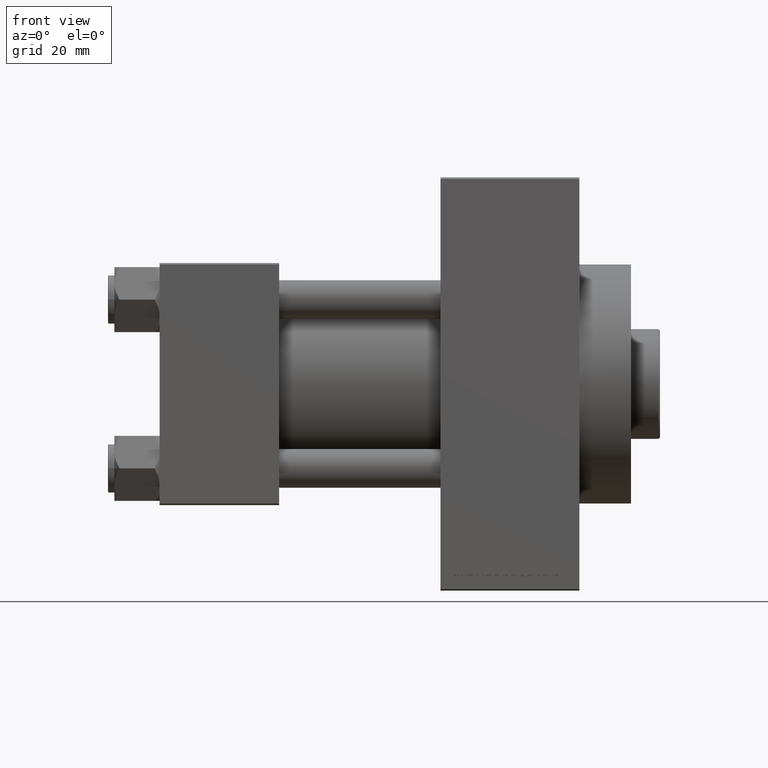
[diagram: clean part render]
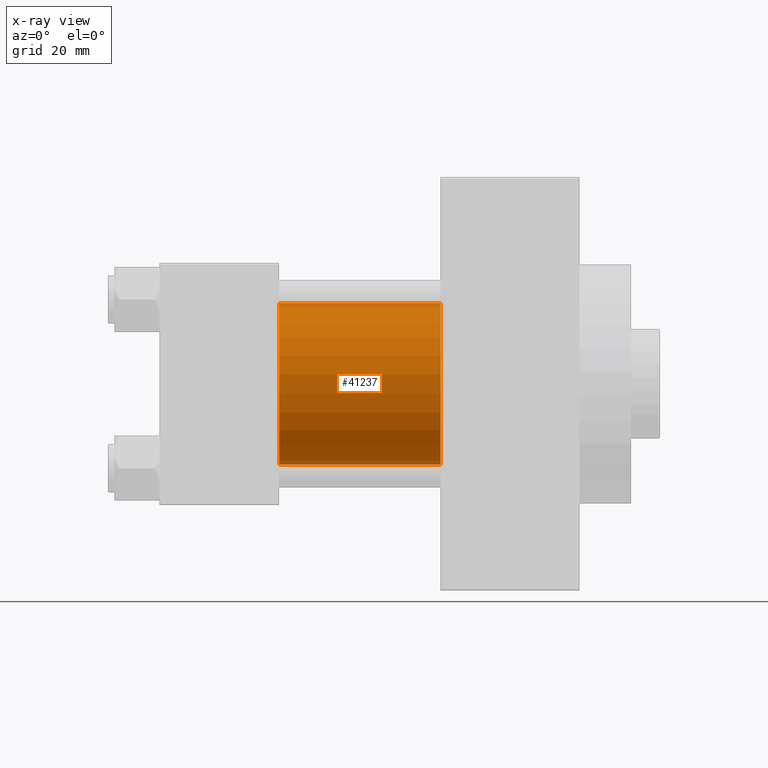
[diagram: x-ray — body ghosted, one internal face saturated and labeled with its STEP entity id]
A machine part, front view, then the same camera in x-ray: the body is ghosted and one INTERNAL B-rep face — a face not visible from any outside direction — is saturated and labeled: STEP entity #41237.
In plain terms, the highlighted cylindrical surface (partial cylindrical patch) has radius 25 mm, axis along (-1, -0, -0).
Its self-contained STEP definition (entity closure, byte-faithful):
#847 = EDGE_CURVE ( 'NONE', #42675, #44367, #42682, .T. ) ;
#2045 = DIRECTION ( 'NONE',  ( 0.000000000000000000, 0.000000000000000000, -1.000000000000000000 ) ) ;
#2280 = CARTESIAN_POINT ( 'NONE',  ( 87.00000000000000000, -2.602085213965210642E-15, 0.000000000000000000 ) ) ;
#3039 = DIRECTION ( 'NONE',  ( -1.000000000000000000, -0.000000000000000000, -0.000000000000000000 ) ) ;
#3617 = VERTEX_POINT ( 'NONE', #42262 ) ;
#5322 = AXIS2_PLACEMENT_3D ( 'NONE', #2280, #27130, #2045 ) ;
#5584 = FACE_OUTER_BOUND ( 'NONE', #41446, .T. ) ;
#6901 = CARTESIAN_POINT ( 'NONE',  ( 87.00000000000000000, 4.595317839031724996E-16, -25.00000000000000000 ) ) ;
#8059 = ORIENTED_EDGE ( 'NONE', *, *, #10223, .T. ) ;
#8205 = VECTOR ( 'NONE', #3039, 1000.000000000000000 ) ;
#8345 = ORIENTED_EDGE ( 'NONE', *, *, #43654, .F. ) ;
#10223 = EDGE_CURVE ( 'NONE', #18439, #42675, #32020, .T. ) ;
#12017 = CARTESIAN_POINT ( 'NONE',  ( 37.00000000000000000, -2.602085213965210642E-15, 0.000000000000000000 ) ) ;
#12341 = ORIENTED_EDGE ( 'NONE', *, *, #847, .T. ) ;
#16062 = DIRECTION ( 'NONE',  ( 0.000000000000000000, 0.000000000000000000, -1.000000000000000000 ) ) ;
#16712 = CARTESIAN_POINT ( 'NONE',  ( 87.00000000000000000, -2.602085213965210642E-15, 25.00000000000000000 ) ) ;
#18439 = VERTEX_POINT ( 'NONE', #19074 ) ;
#19074 = CARTESIAN_POINT ( 'NONE',  ( 87.00000000000000000, -2.602085213965210642E-15, 25.00000000000000000 ) ) ;
#19168 = EDGE_CURVE ( 'NONE', #3617, #44367, #32686, .T. ) ;
#19883 = DIRECTION ( 'NONE',  ( 1.000000000000000000, 0.000000000000000000, 0.000000000000000000 ) ) ;
#19913 = DIRECTION ( 'NONE',  ( -1.000000000000000000, -0.000000000000000000, -0.000000000000000000 ) ) ;
#27130 = DIRECTION ( 'NONE',  ( 1.000000000000000000, 0.000000000000000000, 0.000000000000000000 ) ) ;
#28443 = VECTOR ( 'NONE', #42964, 1000.000000000000000 ) ;
#31137 = CYLINDRICAL_SURFACE ( 'NONE', #39826, 25.00000000000000000 ) ;
#32020 = CIRCLE ( 'NONE', #5322, 25.00000000000000000 ) ;
#32686 = CIRCLE ( 'NONE', #34187, 25.00000000000000000 ) ;
#34187 = AXIS2_PLACEMENT_3D ( 'NONE', #12017, #19883, #16062 ) ;
#34498 = CARTESIAN_POINT ( 'NONE',  ( 87.00000000000000000, -2.602085213965210642E-15, 0.000000000000000000 ) ) ;
#34737 = DIRECTION ( 'NONE',  ( 0.000000000000000000, 0.000000000000000000, 1.000000000000000000 ) ) ;
#36706 = ORIENTED_EDGE ( 'NONE', *, *, #19168, .F. ) ;
#39826 = AXIS2_PLACEMENT_3D ( 'NONE', #34498, #19913, #34737 ) ;
#41237 = ADVANCED_FACE ( 'NONE', ( #5584 ), #31137, .F. ) ;
#41446 = EDGE_LOOP ( 'NONE', ( #8059, #12341, #36706, #8345 ) ) ;
#42262 = CARTESIAN_POINT ( 'NONE',  ( 37.00000000000000000, -2.602085213965210642E-15, 25.00000000000000000 ) ) ;
#42675 = VERTEX_POINT ( 'NONE', #6901 ) ;
#42682 = LINE ( 'NONE', #42917, #8205 ) ;
#42917 = CARTESIAN_POINT ( 'NONE',  ( 87.00000000000000000, 4.595317839031724996E-16, -25.00000000000000000 ) ) ;
#42964 = DIRECTION ( 'NONE',  ( -1.000000000000000000, -0.000000000000000000, -0.000000000000000000 ) ) ;
#43190 = LINE ( 'NONE', #16712, #28443 ) ;
#43310 = CARTESIAN_POINT ( 'NONE',  ( 37.00000000000000000, 4.595317839031724996E-16, -25.00000000000000000 ) ) ;
#43654 = EDGE_CURVE ( 'NONE', #18439, #3617, #43190, .T. ) ;
#44367 = VERTEX_POINT ( 'NONE', #43310 ) ;